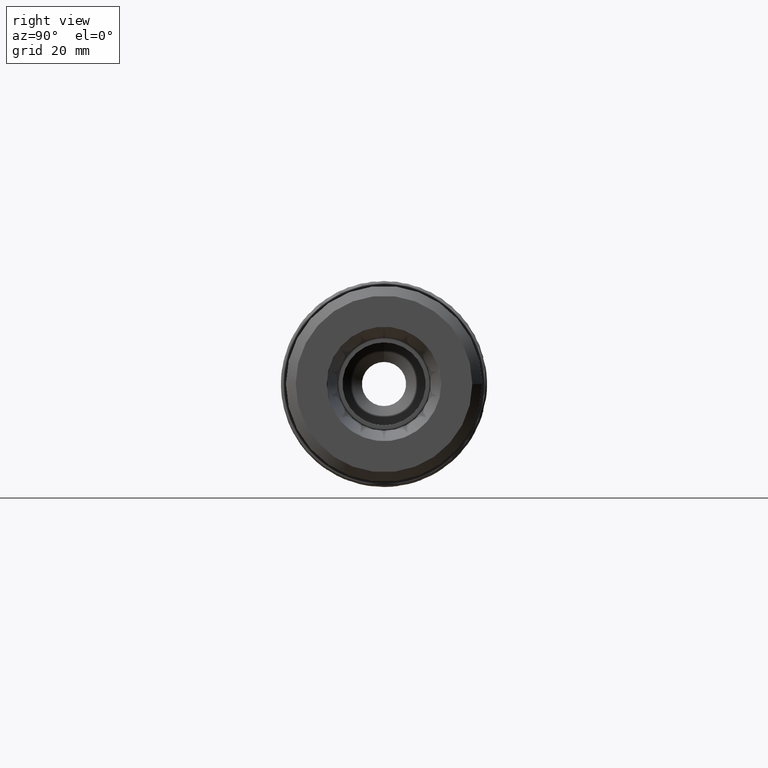
[diagram: clean part render]
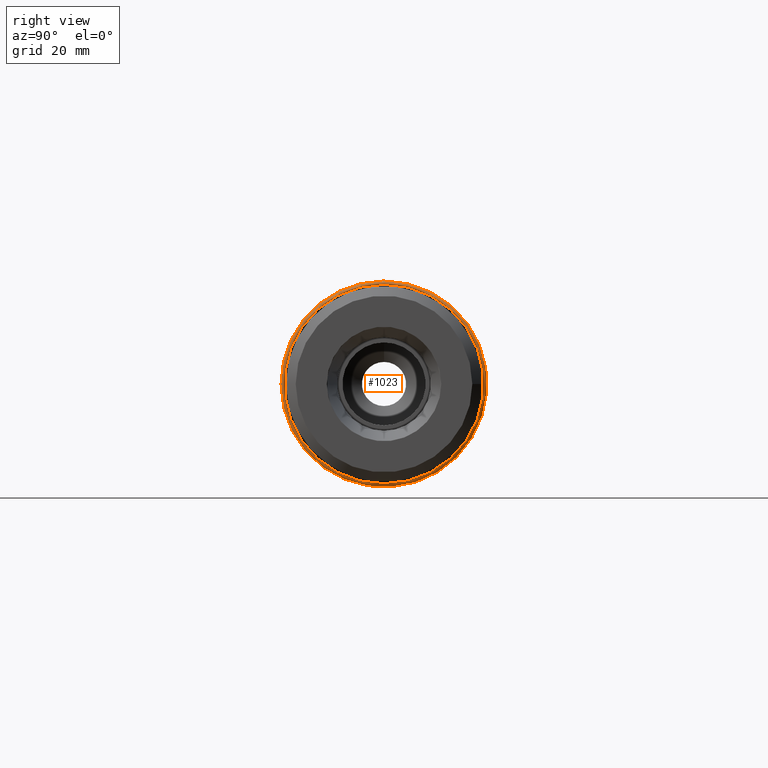
[diagram: same view with one face highlighted and labeled with its STEP entity id]
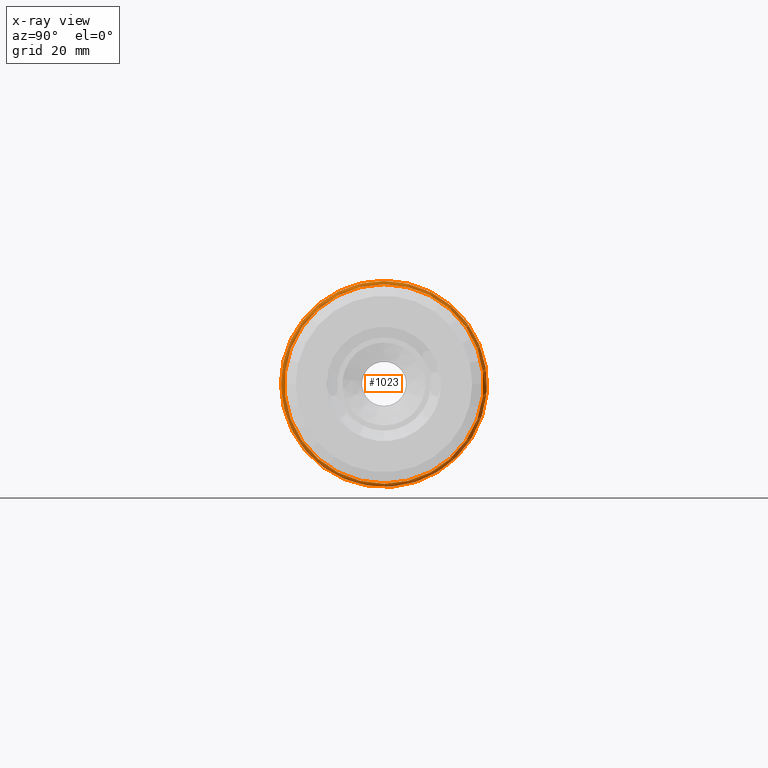
[diagram: x-ray of the same camera — body ghosted, the highlighted face saturated]
A machine part, right view. The second image highlights one B-rep face of the part: STEP entity #1023.
The next image is the same camera in x-ray: the body ghosted, the highlighted face saturated — about 0% of this face is hidden behind the body in this view.
In plain terms, the highlighted toroidal blend (fillet) surface has major radius 30.5 mm and minor (blend) radius 1 mm.
Its self-contained STEP definition (entity closure, byte-faithful):
#59=TOROIDAL_SURFACE('',#1215,30.5,1.00000000000001);
#159=FACE_OUTER_BOUND('',#227,.T.);
#227=EDGE_LOOP('',(#904,#905,#906,#907,#908));
#365=CIRCLE('',#1129,30.5);
#381=CIRCLE('',#1162,31.5);
#384=CIRCLE('',#1165,31.5);
#410=CIRCLE('',#1216,1.00000000000001);
#437=VERTEX_POINT('',#1615);
#475=VERTEX_POINT('',#1772);
#476=VERTEX_POINT('',#1773);
#536=EDGE_CURVE('',#437,#437,#365,.T.);
#586=EDGE_CURVE('',#475,#476,#381,.T.);
#591=EDGE_CURVE('',#476,#475,#384,.T.);
#643=EDGE_CURVE('',#437,#476,#410,.T.);
#904=ORIENTED_EDGE('',*,*,#536,.F.);
#905=ORIENTED_EDGE('',*,*,#643,.T.);
#906=ORIENTED_EDGE('',*,*,#591,.T.);
#907=ORIENTED_EDGE('',*,*,#586,.T.);
#908=ORIENTED_EDGE('',*,*,#643,.F.);
#1023=ADVANCED_FACE('',(#159),#59,.T.);
#1129=AXIS2_PLACEMENT_3D('',#1616,#1290,#1291);
#1162=AXIS2_PLACEMENT_3D('',#1774,#1380,#1381);
#1165=AXIS2_PLACEMENT_3D('',#1790,#1387,#1388);
#1215=AXIS2_PLACEMENT_3D('',#1936,#1505,#1506);
#1216=AXIS2_PLACEMENT_3D('',#1937,#1507,#1508);
#1290=DIRECTION('center_axis',(1.,0.,0.));
#1291=DIRECTION('ref_axis',(0.,0.,-1.));
#1380=DIRECTION('center_axis',(1.,0.,0.));
#1381=DIRECTION('ref_axis',(0.,0.,-1.));
#1387=DIRECTION('center_axis',(1.,0.,0.));
#1388=DIRECTION('ref_axis',(0.,0.,-1.));
#1505=DIRECTION('center_axis',(1.,0.,0.));
#1506=DIRECTION('ref_axis',(0.,0.,-1.));
#1507=DIRECTION('center_axis',(0.,-1.,-1.22464679914735E-16));
#1508=DIRECTION('ref_axis',(0.,-1.22464679914735E-16,1.));
#1615=CARTESIAN_POINT('',(27.,-3.73517273739943E-15,30.5));
#1616=CARTESIAN_POINT('Origin',(27.,0.,0.));
#1772=CARTESIAN_POINT('',(26.,-31.5,-3.85763741731416E-15));
#1773=CARTESIAN_POINT('',(26.,-3.85763741731416E-15,31.5));
#1774=CARTESIAN_POINT('Origin',(26.,0.,0.));
#1790=CARTESIAN_POINT('Origin',(26.,0.,0.));
#1936=CARTESIAN_POINT('Origin',(26.,0.,0.));
#1937=CARTESIAN_POINT('Origin',(26.,-3.73517273739943E-15,30.5));